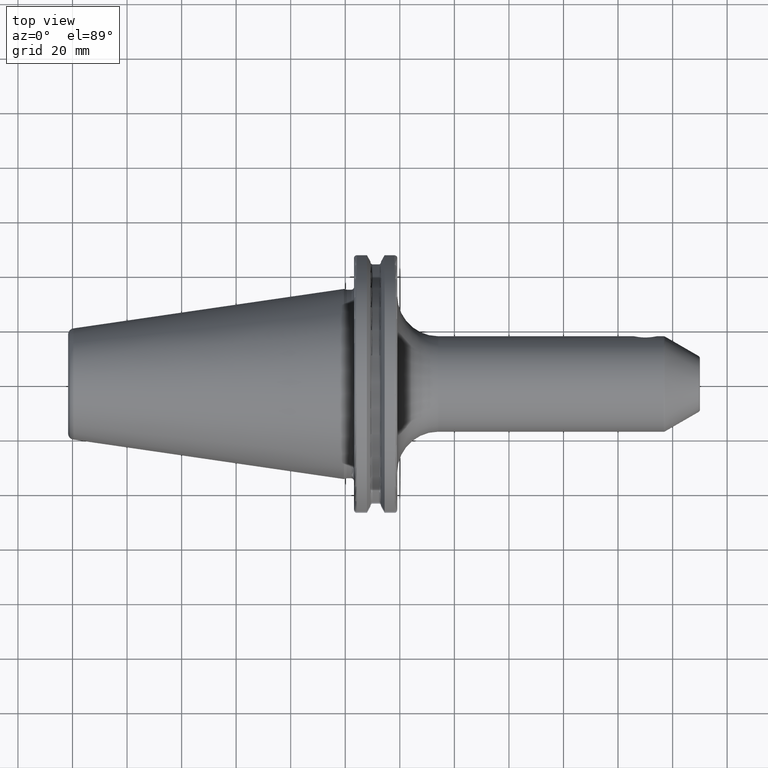
[diagram: clean part render]
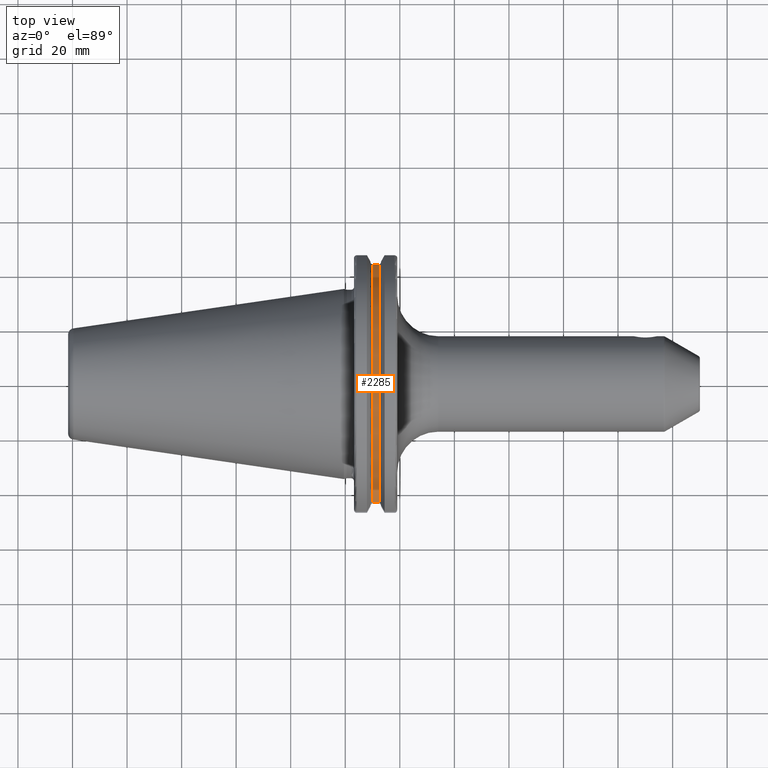
[diagram: same view with one face highlighted and labeled with its STEP entity id]
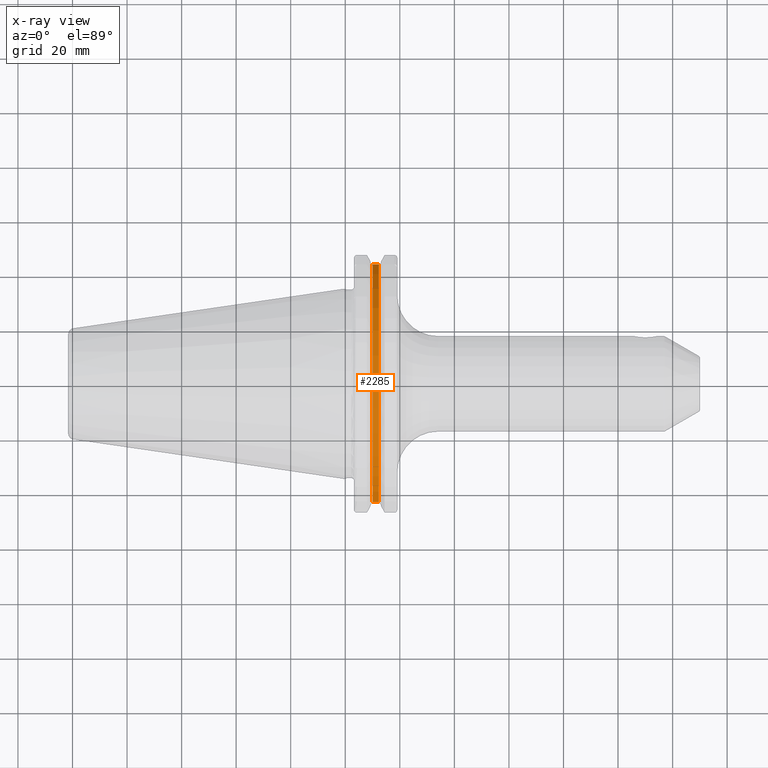
[diagram: x-ray of the same camera — body ghosted, the highlighted face saturated]
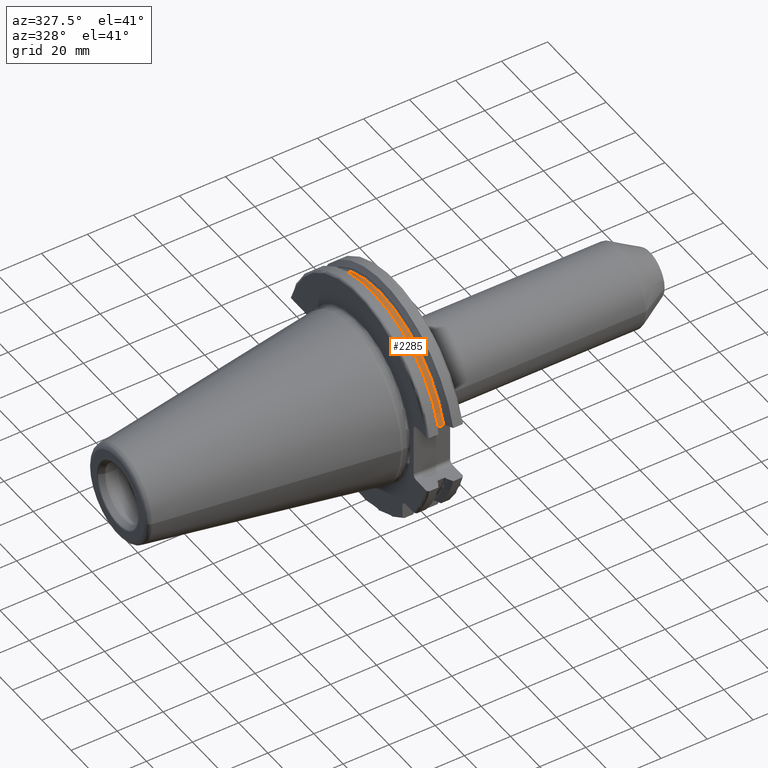
[diagram: same view with one face highlighted and labeled with its STEP entity id]
A machine part, top view. The second image highlights one B-rep face of the part: STEP entity #2285.
The next image is the same camera in x-ray: the body ghosted, the highlighted face saturated — about 0% of this face is hidden behind the body in this view.
A second angle (auxiliary view) of the same face is appended — the face is thin or edge-on in the first view.
In plain terms, the highlighted cylindrical surface (partial cylindrical patch) has radius 45.5 mm, axis along (1, 0, 0).
Its self-contained STEP definition (entity closure, byte-faithful):
#478=CARTESIAN_POINT('',(1.00125E1,4.363301502303E1,1.29E1));
#498=CARTESIAN_POINT('',(1.00125E1,-4.363301502303E1,1.29E1));
#505=DIRECTION('',(1.E0,0.E0,0.E0));
#506=VECTOR('',#505,2.325E0);
#507=CARTESIAN_POINT('',(1.00125E1,4.363301502303E1,1.29E1));
#508=LINE('',#507,#506);
#509=DIRECTION('',(1.E0,0.E0,0.E0));
#510=VECTOR('',#509,2.325E0);
#511=CARTESIAN_POINT('',(1.00125E1,-4.363301502303E1,1.29E1));
#512=LINE('',#511,#510);
#513=CARTESIAN_POINT('',(1.00125E1,0.E0,0.E0));
#514=DIRECTION('',(1.E0,0.E0,0.E0));
#515=DIRECTION('',(0.E0,9.589673631435E-1,2.835164835165E-1));
#516=AXIS2_PLACEMENT_3D('',#513,#514,#515);
#540=CARTESIAN_POINT('',(1.23375E1,0.E0,0.E0));
#541=DIRECTION('',(1.E0,0.E0,0.E0));
#542=DIRECTION('',(0.E0,9.589673631435E-1,2.835164835165E-1));
#543=AXIS2_PLACEMENT_3D('',#540,#541,#542);
#1486=VERTEX_POINT('',#478);
#1487=VERTEX_POINT('',#498);
#1488=CARTESIAN_POINT('',(1.23375E1,4.363301502303E1,1.29E1));
#1489=VERTEX_POINT('',#1488);
#1490=CARTESIAN_POINT('',(1.23375E1,-4.363301502303E1,1.29E1));
#1491=VERTEX_POINT('',#1490);
#2273=CARTESIAN_POINT('',(7.325E0,0.E0,0.E0));
#2274=DIRECTION('',(1.E0,0.E0,0.E0));
#2275=DIRECTION('',(0.E0,-1.E0,0.E0));
#2276=AXIS2_PLACEMENT_3D('',#2273,#2274,#2275);
#2277=CYLINDRICAL_SURFACE('',#2276,4.55E1);
#2278=ORIENTED_EDGE('',*,*,#2150,.T.);
#2280=ORIENTED_EDGE('',*,*,#2279,.T.);
#2281=ORIENTED_EDGE('',*,*,#2091,.F.);
#2282=ORIENTED_EDGE('',*,*,#2266,.F.);
#2283=EDGE_LOOP('',(#2278,#2280,#2281,#2282));
#2284=FACE_OUTER_BOUND('',#2283,.F.);
#2285=ADVANCED_FACE('',(#2284),#2277,.T.);
#517=CIRCLE('',#516,4.55E1);
#544=CIRCLE('',#543,4.55E1);
#2091=EDGE_CURVE('',#1487,#1491,#512,.T.);
#2150=EDGE_CURVE('',#1486,#1489,#508,.T.);
#2266=EDGE_CURVE('',#1486,#1487,#517,.T.);
#2279=EDGE_CURVE('',#1489,#1491,#544,.T.);